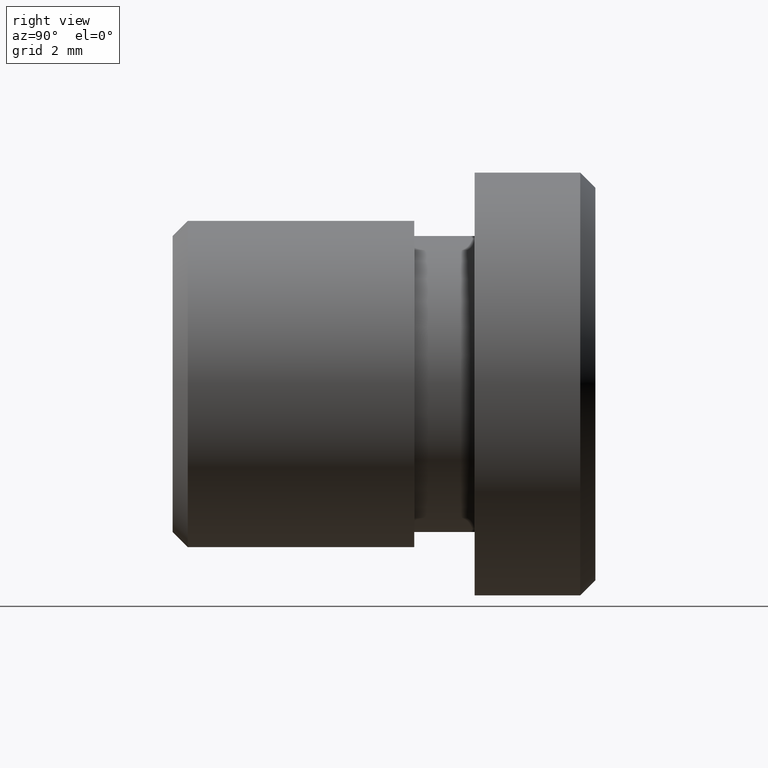
[diagram: clean part render]
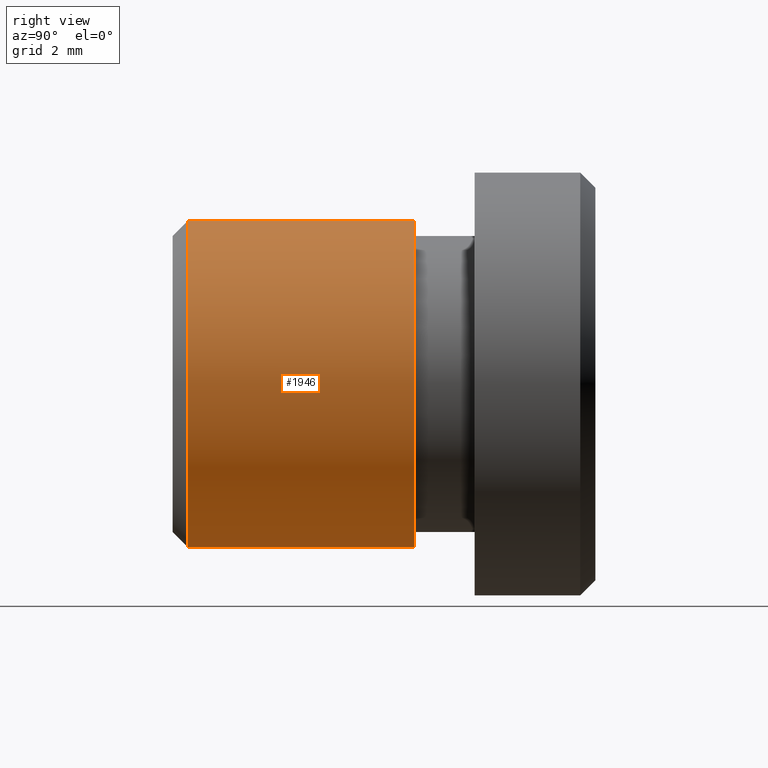
[diagram: same view with one face highlighted and labeled with its STEP entity id]
A machine part, right view. The second image highlights one B-rep face of the part: STEP entity #1946.
In plain terms, the highlighted cylindrical surface (partial cylindrical patch) has radius 5.4 mm, axis along (-0, -1, -0).
Its self-contained STEP definition (entity closure, byte-faithful):
#704 = AXIS2_PLACEMENT_3D ( 'NONE', #13283, #7679, #6671 ) ;
#770 = DIRECTION ( 'NONE',  ( 0.0000000000000000000, 0.0000000000000000000, -1.000000000000000000 ) ) ;
#1015 = DIRECTION ( 'NONE',  ( 0.0000000000000000000, 0.0000000000000000000, 1.000000000000000000 ) ) ;
#1062 = DIRECTION ( 'NONE',  ( -0.0000000000000000000, -1.000000000000000000, -0.0000000000000000000 ) ) ;
#1606 = CARTESIAN_POINT ( 'NONE',  ( 6.613092715395706500E-016, 0.5000000000000030000, 5.399999999999999500 ) ) ;
#1887 = VECTOR ( 'NONE', #1062, 1000.000000000000000 ) ;
#1946 = ADVANCED_FACE ( 'NONE', ( #9599 ), #9103, .T. ) ;
#3032 = CARTESIAN_POINT ( 'NONE',  ( 0.0000000000000000000, 8.000000000000000000, -5.399999999999998600 ) ) ;
#4111 = CARTESIAN_POINT ( 'NONE',  ( 0.0000000000000000000, 0.0000000000000000000, 0.0000000000000000000 ) ) ;
#4187 = EDGE_CURVE ( 'NONE', #9292, #8187, #5103, .T. ) ;
#4358 = CARTESIAN_POINT ( 'NONE',  ( 6.613092715395706500E-016, 0.0000000000000000000, 5.399999999999999500 ) ) ;
#4510 = AXIS2_PLACEMENT_3D ( 'NONE', #11052, #14201, #1015 ) ;
#4723 = CIRCLE ( 'NONE', #4510, 5.399999999999998600 ) ;
#5103 = LINE ( 'NONE', #12676, #5628 ) ;
#5228 = DIRECTION ( 'NONE',  ( -0.0000000000000000000, -1.000000000000000000, -0.0000000000000000000 ) ) ;
#5585 = EDGE_CURVE ( 'NONE', #5754, #8187, #8528, .T. ) ;
#5628 = VECTOR ( 'NONE', #12766, 1000.000000000000000 ) ;
#5754 = VERTEX_POINT ( 'NONE', #1606 ) ;
#5861 = CARTESIAN_POINT ( 'NONE',  ( 6.613092715395706500E-016, 8.000000000000000000, 5.399999999999998600 ) ) ;
#5988 = ORIENTED_EDGE ( 'NONE', *, *, #5585, .T. ) ;
#6241 = LINE ( 'NONE', #4358, #1887 ) ;
#6562 = ORIENTED_EDGE ( 'NONE', *, *, #4187, .F. ) ;
#6565 = CARTESIAN_POINT ( 'NONE',  ( 0.0000000000000000000, 0.5000000000000030000, -5.399999999999999500 ) ) ;
#6671 = DIRECTION ( 'NONE',  ( 0.0000000000000000000, 0.0000000000000000000, -1.000000000000000000 ) ) ;
#7521 = ORIENTED_EDGE ( 'NONE', *, *, #9367, .T. ) ;
#7679 = DIRECTION ( 'NONE',  ( 0.0000000000000000000, 1.000000000000000000, 0.0000000000000000000 ) ) ;
#8006 = EDGE_LOOP ( 'NONE', ( #13880, #7521, #5988, #6562 ) ) ;
#8187 = VERTEX_POINT ( 'NONE', #6565 ) ;
#8528 = CIRCLE ( 'NONE', #704, 5.399999999999999500 ) ;
#9103 = CYLINDRICAL_SURFACE ( 'NONE', #14286, 5.399999999999999500 ) ;
#9121 = VERTEX_POINT ( 'NONE', #5861 ) ;
#9292 = VERTEX_POINT ( 'NONE', #3032 ) ;
#9367 = EDGE_CURVE ( 'NONE', #9121, #5754, #6241, .T. ) ;
#9428 = EDGE_CURVE ( 'NONE', #9121, #9292, #4723, .T. ) ;
#9599 = FACE_OUTER_BOUND ( 'NONE', #8006, .T. ) ;
#11052 = CARTESIAN_POINT ( 'NONE',  ( 0.0000000000000000000, 8.000000000000000000, 0.0000000000000000000 ) ) ;
#12676 = CARTESIAN_POINT ( 'NONE',  ( 0.0000000000000000000, 0.0000000000000000000, -5.399999999999999500 ) ) ;
#12766 = DIRECTION ( 'NONE',  ( -0.0000000000000000000, -1.000000000000000000, -0.0000000000000000000 ) ) ;
#13283 = CARTESIAN_POINT ( 'NONE',  ( 0.0000000000000000000, 0.5000000000000030000, 0.0000000000000000000 ) ) ;
#13880 = ORIENTED_EDGE ( 'NONE', *, *, #9428, .F. ) ;
#14201 = DIRECTION ( 'NONE',  ( -0.0000000000000000000, 1.000000000000000000, -0.0000000000000000000 ) ) ;
#14286 = AXIS2_PLACEMENT_3D ( 'NONE', #4111, #5228, #770 ) ;